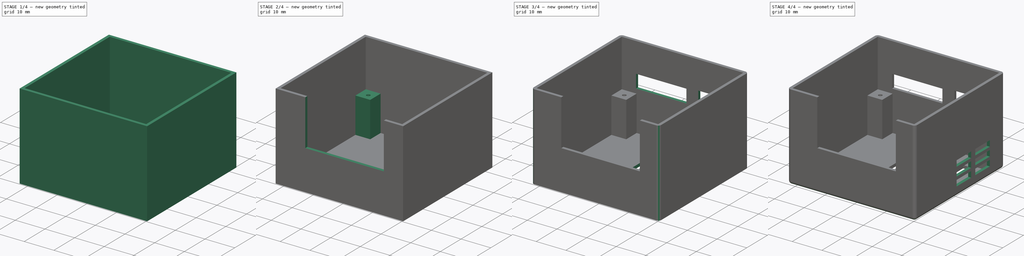
[diagram: build sequence overview — one tinted view per stage of 4, left to right]
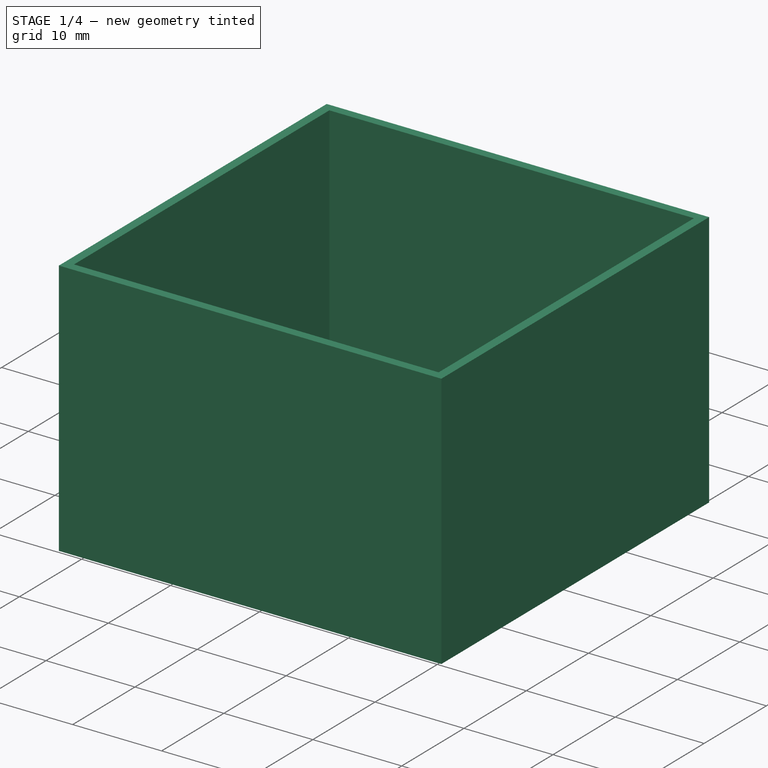
[diagram: stage 1 of 4 — iso view after this stage's code; geometry added in this stage tinted green]
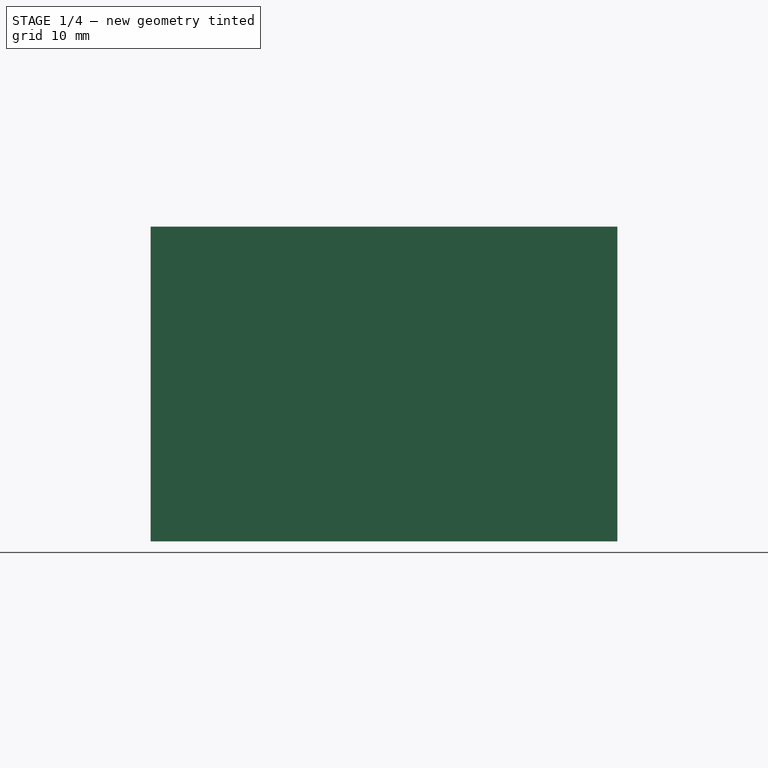
[diagram: stage 1 of 4 — front view after this stage's code; geometry added in this stage tinted green]
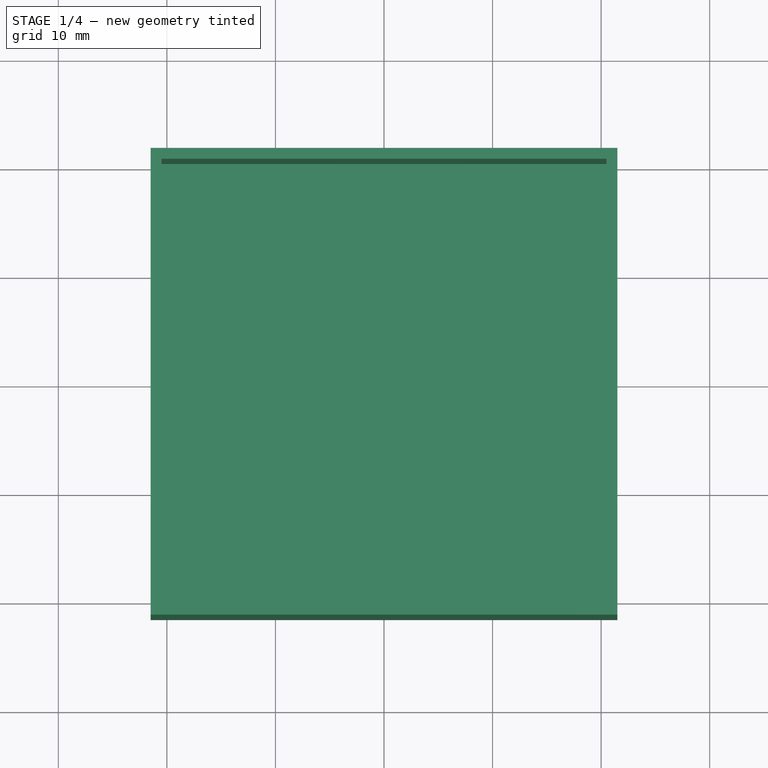
[diagram: stage 1 of 4 — top view after this stage's code; geometry added in this stage tinted green]
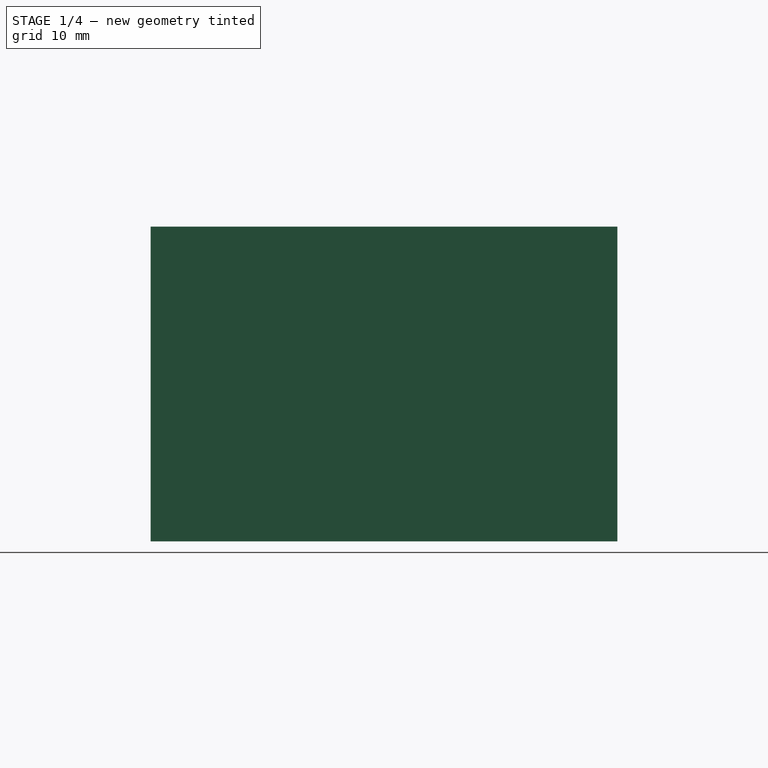
[diagram: stage 1 of 4 — right view after this stage's code; geometry added in this stage tinted green]
FCSTD DOCUMENT  (FreeCAD 0.18R16117 (Git))
Label: NanoPi Neo Case
License: All rights reserved
LicenseURL: http://en.wikipedia.org/wiki/All_rights_reserved
objects: Sketcher::SketchObject×8, PartDesign::Pocket×6, PartDesign::Pad×2, PartDesign::Fillet×2, PartDesign::Plane×1, PartDesign::Body×1
note: 28 computed .brp shape members not serialized (recipe doc carries the construction recipe); baked Part::Feature solids carry a one-line shape summary decoded from their .brp

FEATURE [Sketcher::SketchObject] Sketch
  MapMode = 5
  Support = -> [XY_Plane]
  sketch-geometry (4):
    g0: LineSegment StartX=-21.5 StartY=21.5 StartZ=0 EndX=21.5 EndY=21.5 EndZ=0
    g1: LineSegment StartX=21.5 StartY=21.5 StartZ=0 EndX=21.5 EndY=-21.5 EndZ=0
    g2: LineSegment StartX=21.5 StartY=-21.5 StartZ=0 EndX=-21.5 EndY=-21.5 EndZ=0
    g3: LineSegment StartX=-21.5 StartY=-21.5 StartZ=0 EndX=-21.5 EndY=21.5 EndZ=0
  constraints (12):
    c: Coincident(g0,g1)
    c: Coincident(g1,g2)
    c: Coincident(g2,g3)
    c: Coincident(g3,g0)
    c: Horizontal(g0)
    c: Horizontal(g2)
    c: Vertical(g1)
    c: Vertical(g3)
    c: Distance(g0) = 43
    c: Distance(g3) = 43
    c: DistanceX(g0) = -21.5
    c: DistanceY(g0) = 21.5
FEATURE [PartDesign::Pad] Pad
  Length = 29
  Length2 = 100
  Profile = -> Sketch
  Type = 0
FEATURE [Sketcher::SketchObject] Sketch001
  ExternalGeometry = -> [Pad]
  MapMode = 5
  Placement = pos=(0,0,29) rot=(0,0,1;0rad)
  Support = -> [Pad]
  sketch-geometry (4):
    g0: LineSegment StartX=-20.5 StartY=20.5 StartZ=0 EndX=20.5 EndY=20.5 EndZ=0
    g1: LineSegment StartX=20.5 StartY=20.5 StartZ=0 EndX=20.5 EndY=-20.5 EndZ=0
    g2: LineSegment StartX=20.5 StartY=-20.5 StartZ=0 EndX=-20.5 EndY=-20.5 EndZ=0
    g3: LineSegment StartX=-20.5 StartY=-20.5 StartZ=0 EndX=-20.5 EndY=20.5 EndZ=0
  constraints (12):
    c: Coincident(g0,g1)
    c: Coincident(g1,g2)
    c: Coincident(g2,g3)
    c: Coincident(g3,g0)
    c: Horizontal(g0)
    c: Horizontal(g2)
    c: Vertical(g1)
    c: Vertical(g3)
    c: DistanceX(g-5,g0) = 1
    c: DistanceX(g0,g-5) = 1
    c: DistanceY(g-6,g2) = 1
    c: DistanceY(g0,g-5) = 1
FEATURE [PartDesign::Pocket] Pocket
  BaseFeature = -> Pad
  Length = 28
  Length2 = 100
  Profile = -> Sketch001
  Type = 0
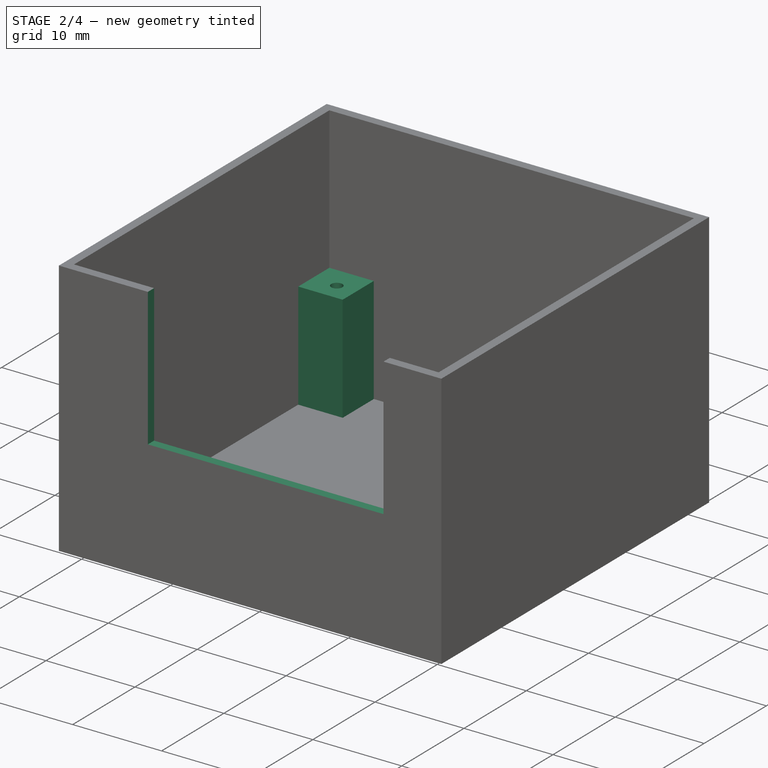
[diagram: stage 2 of 4 — iso view after this stage's code; geometry added in this stage tinted green]
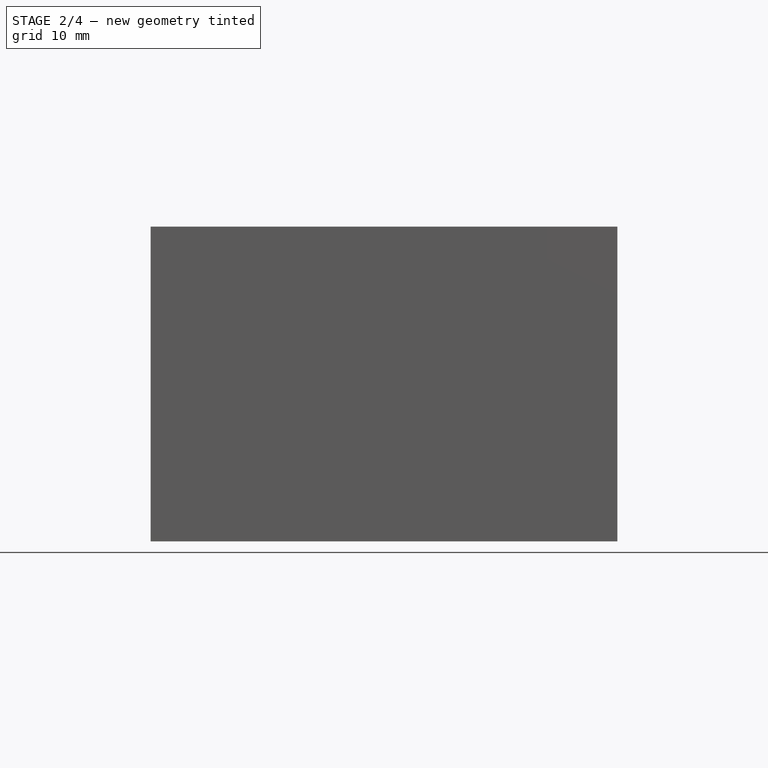
[diagram: stage 2 of 4 — front view after this stage's code; geometry added in this stage tinted green]
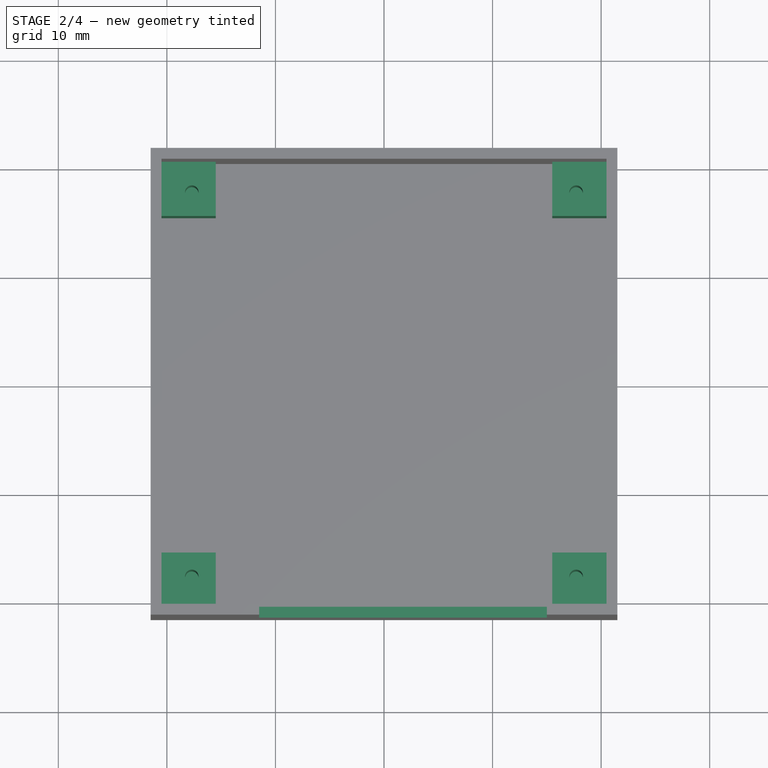
[diagram: stage 2 of 4 — top view after this stage's code; geometry added in this stage tinted green]
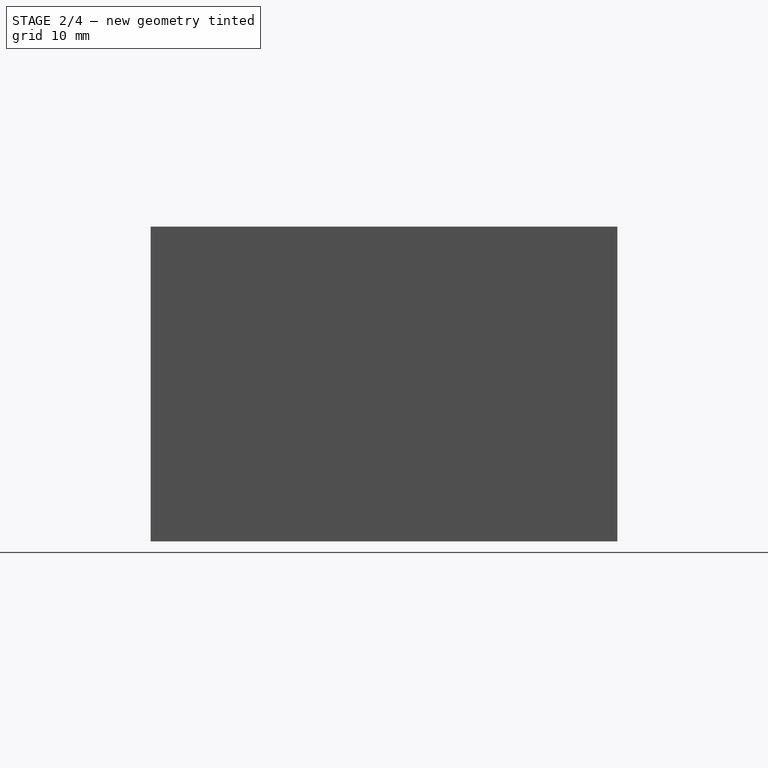
[diagram: stage 2 of 4 — right view after this stage's code; geometry added in this stage tinted green]
FEATURE [Sketcher::SketchObject] Sketch002
  ExternalGeometry = -> [Pocket]
  MapMode = 5
  Placement = pos=(0,0,1) rot=(0,0,1;0rad)
  Support = -> [Pocket]
  sketch-geometry (16):
    g0: LineSegment StartX=-20.5 StartY=20.5 StartZ=0 EndX=-15.5 EndY=20.5 EndZ=0
    g1: LineSegment StartX=-15.5 StartY=20.5 StartZ=0 EndX=-15.5 EndY=15.5 EndZ=0
    g2: LineSegment StartX=-15.5 StartY=15.5 StartZ=0 EndX=-20.5 EndY=15.5 EndZ=0
    g3: LineSegment StartX=-20.5 StartY=15.5 StartZ=0 EndX=-20.5 EndY=20.5 EndZ=0
    g4: LineSegment StartX=15.5 StartY=20.5 StartZ=0 EndX=20.5 EndY=20.5 EndZ=0
    g5: LineSegment StartX=20.5 StartY=20.5 StartZ=0 EndX=20.5 EndY=15.5 EndZ=0
    g6: LineSegment StartX=20.5 StartY=15.5 StartZ=0 EndX=15.5 EndY=15.5 EndZ=0
    g7: LineSegment StartX=15.5 StartY=15.5 StartZ=0 EndX=15.5 EndY=20.5 EndZ=0
    g8: LineSegment StartX=-20.5 StartY=-15.5 StartZ=0 EndX=-15.5 EndY=-15.5 EndZ=0
    g9: LineSegment StartX=-15.5 StartY=-15.5 StartZ=0 EndX=-15.5 EndY=-20.5 EndZ=0
    g10: LineSegment StartX=-15.5 StartY=-20.5 StartZ=0 EndX=-20.5 EndY=-20.5 EndZ=0
    g11: LineSegment StartX=-20.5 StartY=-20.5 StartZ=0 EndX=-20.5 EndY=-15.5 EndZ=0
    g12: LineSegment StartX=15.5 StartY=-15.5 StartZ=0 EndX=20.5 EndY=-15.5 EndZ=0
    g13: LineSegment StartX=20.5 StartY=-15.5 StartZ=0 EndX=20.5 EndY=-20.5 EndZ=0
    g14: LineSegment StartX=20.5 StartY=-20.5 StartZ=0 EndX=15.5 EndY=-20.5 EndZ=0
    g15: LineSegment StartX=15.5 StartY=-20.5 StartZ=0 EndX=15.5 EndY=-15.5 EndZ=0
  constraints (44):
    c: Coincident(g0,g1)
    c: Coincident(g1,g2)
    c: Coincident(g2,g3)
    c: Coincident(g3,g0)
    c: Horizontal(g0)
    c: Horizontal(g2)
    c: Vertical(g1)
    c: Vertical(g3)
    c: Coincident(g0,g-4)
    c: Distance(g2) = 5
    c: Distance(g1) = 5
    c: Coincident(g4,g5)
    c: Coincident(g5,g6)
    c: Coincident(g6,g7)
    c: Coincident(g7,g4)
    c: Horizontal(g4)
    c: Horizontal(g6)
    c: Vertical(g5)
    c: Vertical(g7)
    c: Coincident(g4,g-4)
    c: Distance(g7) = 5
    c: Distance(g6) = 5
    c: Coincident(g8,g9)
    c: Coincident(g9,g10)
    c: Coincident(g10,g11)
    c: Coincident(g11,g8)
    c: Horizontal(g8)
    c: Horizontal(g10)
    c: Vertical(g9)
    c: Vertical(g11)
    c: Coincident(g10,g-3)
    c: Distance(g8) = 5
    c: Distance(g9) = 5
    c: Coincident(g12,g13)
    c: Coincident(g13,g14)
    c: Coincident(g14,g15)
    c: Coincident(g15,g12)
    c: Horizontal(g12)
    c: Horizontal(g14)
    c: Vertical(g13)
    c: Vertical(g15)
    c: Coincident(g13,g-5)
    c: Distance(g15) = 5
    c: Distance(g12) = 5
FEATURE [PartDesign::Pad] Pad001
  BaseFeature = -> Pocket
  Length = 12
  Length2 = 100
  Profile = -> Sketch002
  Type = 0
FEATURE [PartDesign::Plane] DatumPlane
  Length = 51.6
  MapMode = 5
  Placement = pos=(0,0,13) rot=(0,0,1;0rad)
  ResizeMode = 0
  Support = -> [Pad001]
  Width = 51.6
FEATURE [Sketcher::SketchObject] Sketch003
  MapMode = 5
  Placement = pos=(0,0,13) rot=(0,0,1;0rad)
  Support = -> [DatumPlane]
  sketch-geometry (4):
    g0: Circle CenterX=-17.7 CenterY=17.7 CenterZ=0 NormalX=0 NormalY=0 NormalZ=1 AngleXU=0 Radius=0.625
    g1: Circle CenterX=17.7 CenterY=17.7 CenterZ=0 NormalX=0 NormalY=0 NormalZ=1 AngleXU=0 Radius=0.625
    g2: Circle CenterX=-17.7 CenterY=-17.7 CenterZ=0 NormalX=0 NormalY=0 NormalZ=1 AngleXU=0 Radius=0.625
    g3: Circle CenterX=17.7 CenterY=-17.7 CenterZ=0 NormalX=0 NormalY=0 NormalZ=1 AngleXU=0 Radius=0.625
  constraints (12):
    c: Diameter(g0) = 1.25
    c: Diameter(g1) = 1.25
    c: Diameter(g2) = 1.25
    c: Diameter(g3) = 1.25
    c: DistanceX(g0) = -17.7
    c: DistanceY(g0) = 17.7
    c: DistanceX(g1) = 17.7
    c: DistanceY(g1) = 17.7
    c: DistanceX(g2) = -17.7
    c: DistanceY(g2) = -17.7
    c: DistanceX(g3) = 17.7
    c: DistanceY(g3) = -17.7
FEATURE [PartDesign::Pocket] Pocket001
  BaseFeature = -> Pad001
  Length = 10
  Length2 = 100
  Profile = -> Sketch003
  Type = 0
FEATURE [Sketcher::SketchObject] Sketch004
  ExternalGeometry = -> [DatumPlane,Pocket001]
  MapMode = 5
  Placement = pos=(0,-21.5,0) rot=(1,0,0;1.5708rad)
  Support = -> [Pocket001]
  sketch-geometry (4):
    g0: LineSegment StartX=-11.5 StartY=29.5 StartZ=0 EndX=15 EndY=29.5 EndZ=0
    g1: LineSegment StartX=15 StartY=29.5 StartZ=0 EndX=15 EndY=13.5 EndZ=0
    g2: LineSegment StartX=15 StartY=13.5 StartZ=0 EndX=-11.5 EndY=13.5 EndZ=0
    g3: LineSegment StartX=-11.5 StartY=13.5 StartZ=0 EndX=-11.5 EndY=29.5 EndZ=0
  constraints (12):
    c: Coincident(g0,g1)
    c: Coincident(g1,g2)
    c: Coincident(g2,g3)
    c: Coincident(g3,g0)
    c: Horizontal(g0)
    c: Horizontal(g2)
    c: Vertical(g1)
    c: Vertical(g3)
    c: Distance(g0) = 26.5
    c: Distance(g3) = 16
    c: DistanceY(g-4,g1) = 0.5
    c: DistanceX(g-5,g2) = 10
FEATURE [PartDesign::Pocket] Pocket002
  BaseFeature = -> Pocket001
  Length = 1
  Length2 = 100
  Profile = -> Sketch004
  Type = 0
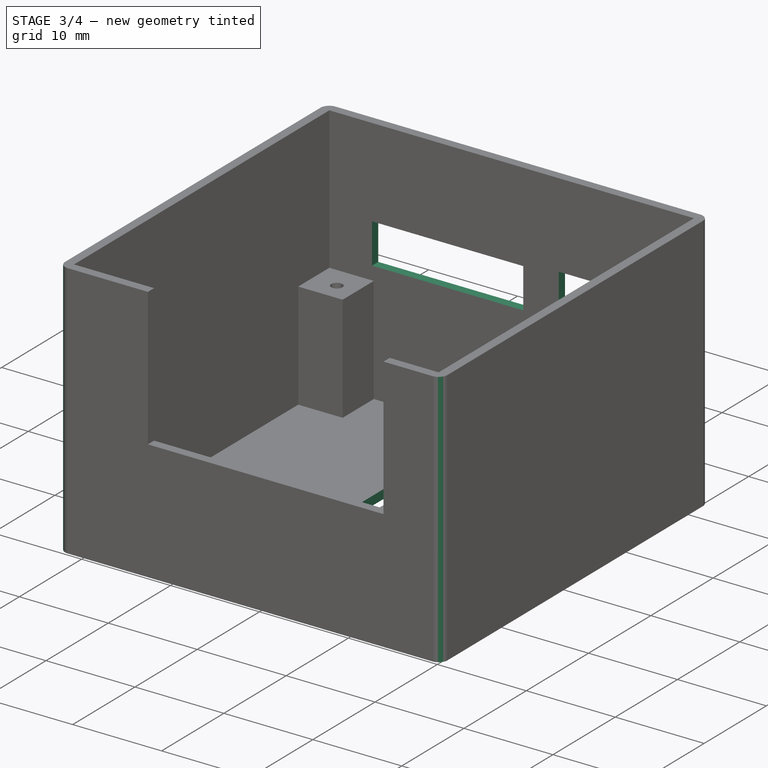
[diagram: stage 3 of 4 — iso view after this stage's code; geometry added in this stage tinted green]
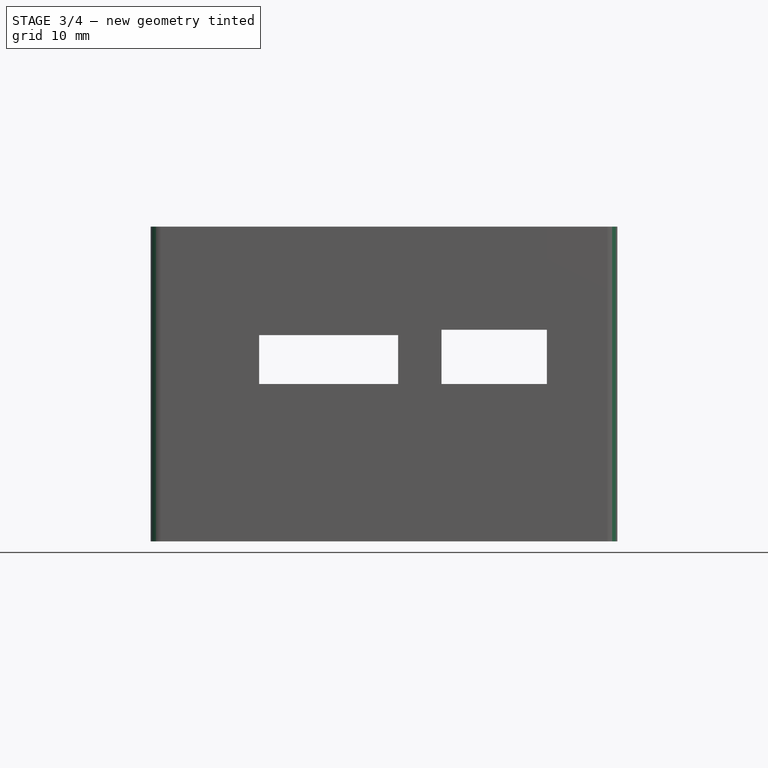
[diagram: stage 3 of 4 — front view after this stage's code; geometry added in this stage tinted green]
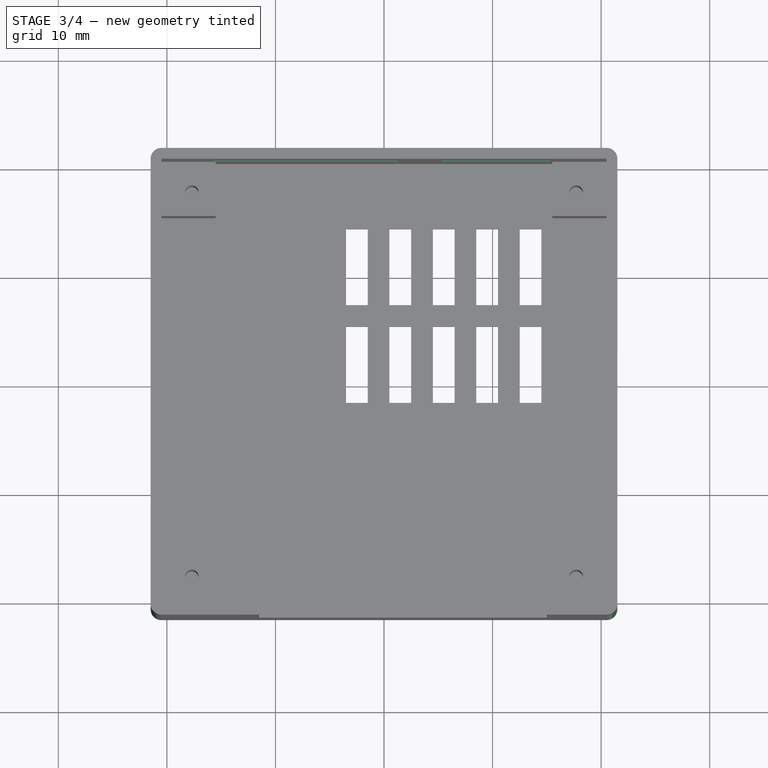
[diagram: stage 3 of 4 — top view after this stage's code; geometry added in this stage tinted green]
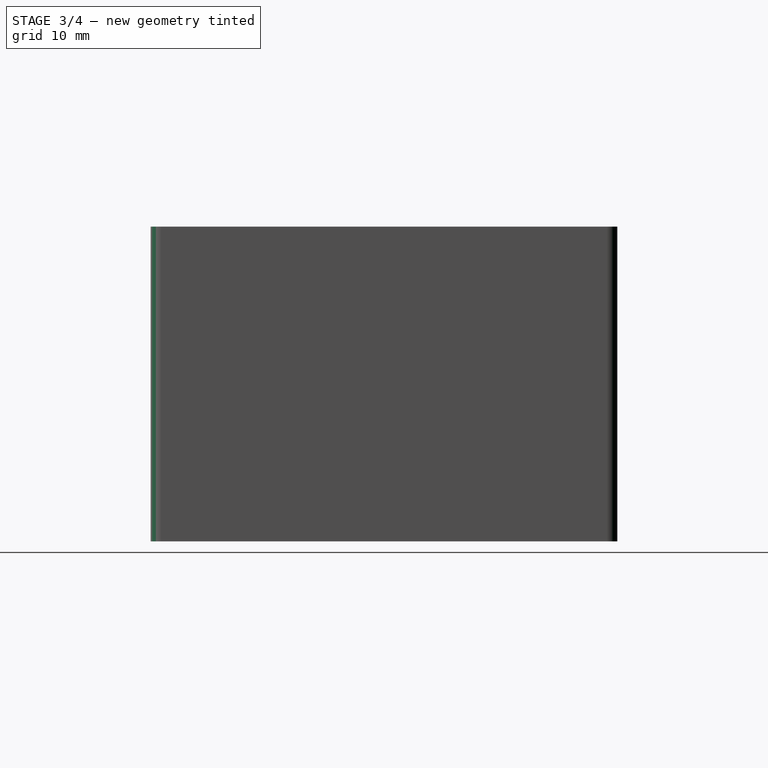
[diagram: stage 3 of 4 — right view after this stage's code; geometry added in this stage tinted green]
FEATURE [Sketcher::SketchObject] Sketch005
  ExternalGeometry = -> [Pocket002]
  MapMode = 5
  Placement = pos=(0,21.5,0) rot=(0,0.707107,0.707107;3.14159rad)
  Support = -> [Pocket002]
  sketch-geometry (8):
    g0: LineSegment StartX=-15.3 StartY=19.5 StartZ=0 EndX=-5.3 EndY=19.5 EndZ=0
    g1: LineSegment StartX=-5.3 StartY=19.5 StartZ=0 EndX=-5.3 EndY=14.5 EndZ=0
    g2: LineSegment StartX=-5.3 StartY=14.5 StartZ=0 EndX=-15.3 EndY=14.5 EndZ=0
    g3: LineSegment StartX=-15.3 StartY=14.5 StartZ=0 EndX=-15.3 EndY=19.5 EndZ=0
    g4: LineSegment StartX=-1.3 StartY=19 StartZ=0 EndX=15.7 EndY=19 EndZ=0
    g5: LineSegment StartX=15.7 StartY=19 StartZ=0 EndX=15.7 EndY=14.5 EndZ=0
    g6: LineSegment StartX=15.7 StartY=14.5 StartZ=0 EndX=-1.3 EndY=14.5 EndZ=0
    g7: LineSegment StartX=-1.3 StartY=14.5 StartZ=0 EndX=-1.3 EndY=19 EndZ=0
FEATURE [PartDesign::Pocket] Pocket003
  BaseFeature = -> Pocket002
  Length = 1
  Length2 = 100
  Profile = -> Sketch005
  Type = 0
FEATURE [Sketcher::SketchObject] Sketch006
  ExternalGeometry = -> [Pocket003]
  MapMode = 5
  Placement = pos=(0,0,0) rot=(1,0,0;3.14159rad)
  Support = -> [Pocket003]
  sketch-geometry (40):
    g0: LineSegment StartX=12.5 StartY=-7.5 StartZ=0 EndX=14.5 EndY=-7.5 EndZ=0
    g1: LineSegment StartX=14.5 StartY=-7.5 StartZ=0 EndX=14.5 EndY=-14.5 EndZ=0
    g2: LineSegment StartX=14.5 StartY=-14.5 StartZ=0 EndX=12.5 EndY=-14.5 EndZ=0
    g3: LineSegment StartX=12.5 StartY=-14.5 StartZ=0 EndX=12.5 EndY=-7.5 EndZ=0
    g4: LineSegment StartX=12.5 StartY=1.5 StartZ=0 EndX=14.5 EndY=1.5 EndZ=0
    g5: LineSegment StartX=14.5 StartY=1.5 StartZ=0 EndX=14.5 EndY=-5.5 EndZ=0
    g6: LineSegment StartX=14.5 StartY=-5.5 StartZ=0 EndX=12.5 EndY=-5.5 EndZ=0
    g7: LineSegment StartX=12.5 StartY=-5.5 StartZ=0 EndX=12.5 EndY=1.5 EndZ=0
    g8: LineSegment StartX=8.5 StartY=-7.5 StartZ=0 EndX=10.5 EndY=-7.5 EndZ=0
    g9: LineSegment StartX=10.5 StartY=-7.5 StartZ=0 EndX=10.5 EndY=-14.5 EndZ=0
    g10: LineSegment StartX=10.5 StartY=-14.5 StartZ=0 EndX=8.5 EndY=-14.5 EndZ=0
    g11: LineSegment StartX=8.5 StartY=-14.5 StartZ=0 EndX=8.5 EndY=-7.5 EndZ=0
    g12: LineSegment StartX=8.5 StartY=1.5 StartZ=0 EndX=10.5 EndY=1.5 EndZ=0
    g13: LineSegment StartX=10.5 StartY=1.5 StartZ=0 EndX=10.5 EndY=-5.5 EndZ=0
    g14: LineSegment StartX=10.5 StartY=-5.5 StartZ=0 EndX=8.5 EndY=-5.5 EndZ=0
    g15: LineSegment StartX=8.5 StartY=-5.5 StartZ=0 EndX=8.5 EndY=1.5 EndZ=0
    g16: LineSegment StartX=4.5 StartY=1.5 StartZ=0 EndX=6.5 EndY=1.5 EndZ=0
    g17: LineSegment StartX=6.5 StartY=1.5 StartZ=0 EndX=6.5 EndY=-5.5 EndZ=0
    g18: LineSegment StartX=6.5 StartY=-5.5 StartZ=0 EndX=4.5 EndY=-5.5 EndZ=0
    g19: LineSegment StartX=4.5 StartY=-5.5 StartZ=0 EndX=4.5 EndY=1.5 EndZ=0
    g20: LineSegment StartX=4.5 StartY=-7.5 StartZ=0 EndX=6.5 EndY=-7.5 EndZ=0
    g21: LineSegment StartX=6.5 StartY=-7.5 StartZ=0 EndX=6.5 EndY=-14.5 EndZ=0
    g22: LineSegment StartX=6.5 StartY=-14.5 StartZ=0 EndX=4.5 EndY=-14.5 EndZ=0
    g23: LineSegment StartX=4.5 StartY=-14.5 StartZ=0 EndX=4.5 EndY=-7.5 EndZ=0
    g24: LineSegment StartX=0.5 StartY=1.5 StartZ=0 EndX=2.5 EndY=1.5 EndZ=0
    g25: LineSegment StartX=2.5 StartY=1.5 StartZ=0 EndX=2.5 EndY=-5.5 EndZ=0
    g26: LineSegment StartX=2.5 StartY=-5.5 StartZ=0 EndX=0.5 EndY=-5.5 EndZ=0
    g27: LineSegment StartX=0.5 StartY=-5.5 StartZ=0 EndX=0.5 EndY=1.5 EndZ=0
    g28: LineSegment StartX=0.5 StartY=-7.5 StartZ=0 EndX=2.5 EndY=-7.5 EndZ=0
    g29: LineSegment StartX=2.5 StartY=-7.5 StartZ=0 EndX=2.5 EndY=-14.5 EndZ=0
    g30: LineSegment StartX=2.5 StartY=-14.5 StartZ=0 EndX=0.5 EndY=-14.5 EndZ=0
    g31: LineSegment StartX=0.5 StartY=-14.5 StartZ=0 EndX=0.5 EndY=-7.5 EndZ=0
    g32: LineSegment StartX=-3.5 StartY=1.5 StartZ=0 EndX=-1.5 EndY=1.5 EndZ=0
    g33: LineSegment StartX=-1.5 StartY=1.5 StartZ=0 EndX=-1.5 EndY=-5.5 EndZ=0
    g34: LineSegment StartX=-1.5 StartY=-5.5 StartZ=0 EndX=-3.5 EndY=-5.5 EndZ=0
    g35: LineSegment StartX=-3.5 StartY=-5.5 StartZ=0 EndX=-3.5 EndY=1.5 EndZ=0
    g36: LineSegment StartX=-3.5 StartY=-7.5 StartZ=0 EndX=-1.5 EndY=-7.5 EndZ=0
    g37: LineSegment StartX=-1.5 StartY=-7.5 StartZ=0 EndX=-1.5 EndY=-14.5 EndZ=0
    g38: LineSegment StartX=-1.5 StartY=-14.5 StartZ=0 EndX=-3.5 EndY=-14.5 EndZ=0
    g39: LineSegment StartX=-3.5 StartY=-14.5 StartZ=0 EndX=-3.5 EndY=-7.5 EndZ=0
  constraints (121):
    c: Coincident(g0,g1)
    c: Coincident(g1,g2)
    c: Coincident(g2,g3)
    c: Coincident(g3,g0)
    c: Horizontal(g0)
    c: Horizontal(g2)
    c: Vertical(g1)
    c: Vertical(g3)
    c: DistanceX(g1,g-3) = 7
    c: DistanceY(g-3,g1) = 7
    c: DistanceY(g1,g1) = 7
    c: DistanceX(g0,g0) = 2
    c: Coincident(g4,g5)
    c: Coincident(g5,g6)
    c: Coincident(g6,g7)
    c: Coincident(g7,g4)
    c: Horizontal(g4)
    c: Horizontal(g6)
    c: Vertical(g5)
    c: Vertical(g7)
    c: Equal(g6,g0)
    c: Equal(g3,g7)
    c: DistanceX(g5,g0) = 0
    c: DistanceY(g0,g5) = 2
    c: Coincident(g8,g9)
    c: Coincident(g9,g10)
    c: Coincident(g10,g11)
    c: Coincident(g11,g8)
    c: Horizontal(g8)
    c: Horizontal(g10)
    c: Vertical(g9)
    c: Vertical(g11)
    c: Equal(g8,g4)
    c: Equal(g11,g7)
    c: DistanceX(g9,g2) = 2
    c: DistanceY(g2,g10) = 0
    c: Coincident(g12,g13)
    c: Coincident(g13,g14)
    c: Coincident(g14,g15)
    c: Coincident(g15,g12)
    c: Horizontal(g12)
    c: Horizontal(g14)
    c: Vertical(g13)
    c: Vertical(g15)
    c: Equal(g15,g7)
    c: Equal(g12,g4)
    c: DistanceX(g14,g8) = 0
    c: DistanceY(g8,g14) = 2
    c: Coincident(g16,g17)
    c: Coincident(g17,g18)
    c: Coincident(g18,g19)
    c: Coincident(g19,g16)
    c: Horizontal(g16)
    c: Horizontal(g18)
    c: Vertical(g17)
    c: Vertical(g19)
    c: Coincident(g20,g21)
    c: Coincident(g21,g22)
    c: Coincident(g22,g23)
    c: Coincident(g23,g20)
    c: Horizontal(g20)
    c: Horizontal(g22)
    c: Vertical(g21)
    c: Vertical(g23)
    c: Coincident(g24,g25)
    c: Coincident(g25,g26)
    c: Coincident(g26,g27)
    c: Coincident(g27,g24)
    c: Horizontal(g24)
    c: Horizontal(g26)
    c: Vertical(g25)
    c: Vertical(g27)
    c: Coincident(g28,g29)
    c: Coincident(g29,g30)
    c: Coincident(g30,g31)
    c: Coincident(g31,g28)
    c: Horizontal(g28)
    c: Horizontal(g30)
    c: Vertical(g29)
    c: Vertical(g31)
    c: Coincident(g32,g33)
    c: Coincident(g33,g34)
    c: Coincident(g34,g35)
    c: Coincident(g35,g32)
    c: Horizontal(g32)
    c: Horizontal(g34)
    c: Vertical(g33)
    c: Vertical(g35)
    c: Coincident(g36,g37)
    c: Coincident(g37,g38)
    c: Coincident(g38,g39)
    c: Coincident(g39,g36)
    c: Horizontal(g36)
    c: Horizontal(g38)
    c: Vertical(g37)
    c: Vertical(g39)
    c: Equal(g16,g4)
    c: Equal(g19,g7)
    c: Equal(g24,g4)
    c: Equal(g27,g7)
    c: Equal(g32,g4)
    c: Equal(g35,g7)
    c: Equal(g36,g0)
    c: Equal(g39,g3)
    c: Equal(g28,g0)
    c: Equal(g31,g3)
    c: Equal(g0,g0)
    c: Equal(g23,g3)
    c: Equal(g20,g0)
    c: DistanceY(g14,g17) = 0
    c: DistanceY(g17,g25) = 0
    c: DistanceY(g25,g33) = 0
    c: DistanceY(g21,g10) = 0
    c: DistanceY(g29,g21) = 0
    c: DistanceY(g37,g30) = 0
    c: DistanceX(g16,g12) = 2
    c: DistanceX(g24,g16) = 2
    c: DistanceX(g32,g24) = 2
    c: DistanceX(g20,g8) = 2
    c: DistanceX(g28,g20) = 2
    c: DistanceX(g36,g28) = 2
FEATURE [PartDesign::Pocket] Pocket004
  BaseFeature = -> Pocket003
  Length = 1
  Length2 = 100
  Profile = -> Sketch006
  Type = 0
FEATURE [PartDesign::Fillet] Fillet
  Base = -> Pocket004 [Edge13,Edge68,Edge4,Edge1]
  BaseFeature = -> Pocket004
  Radius = 1
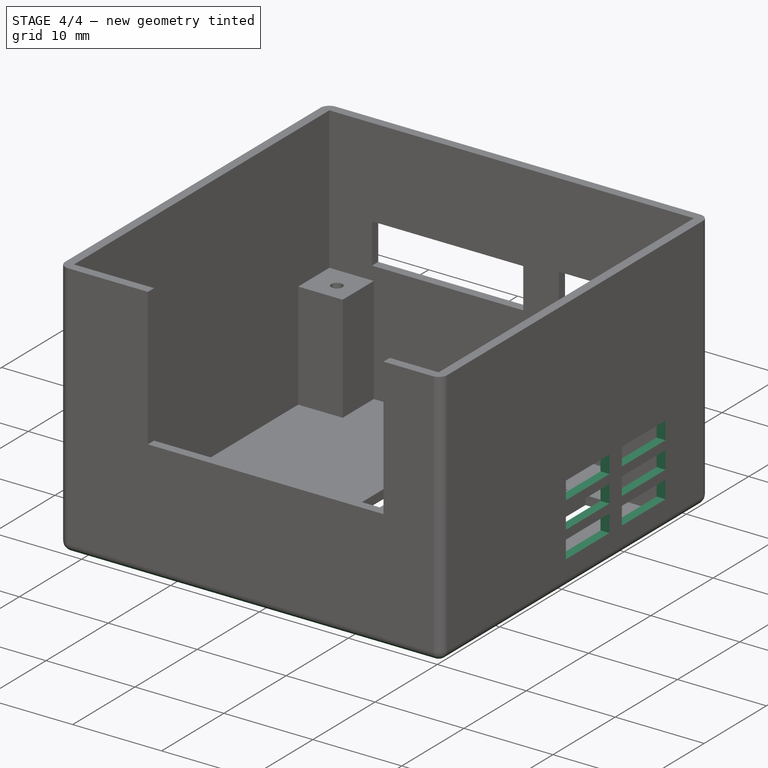
[diagram: stage 4 of 4 — iso view after this stage's code; geometry added in this stage tinted green]
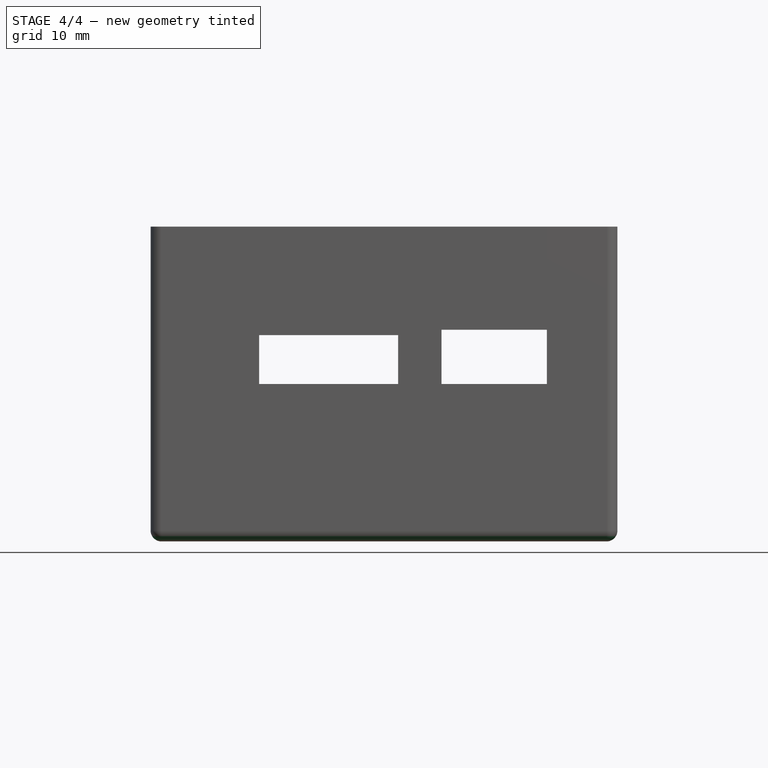
[diagram: stage 4 of 4 — front view after this stage's code; geometry added in this stage tinted green]
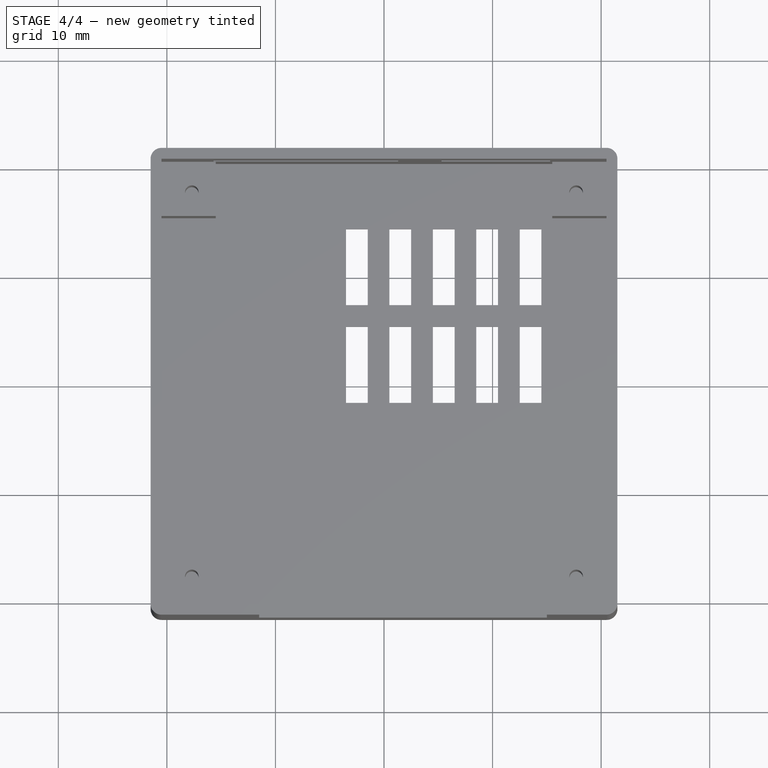
[diagram: stage 4 of 4 — top view after this stage's code; geometry added in this stage tinted green]
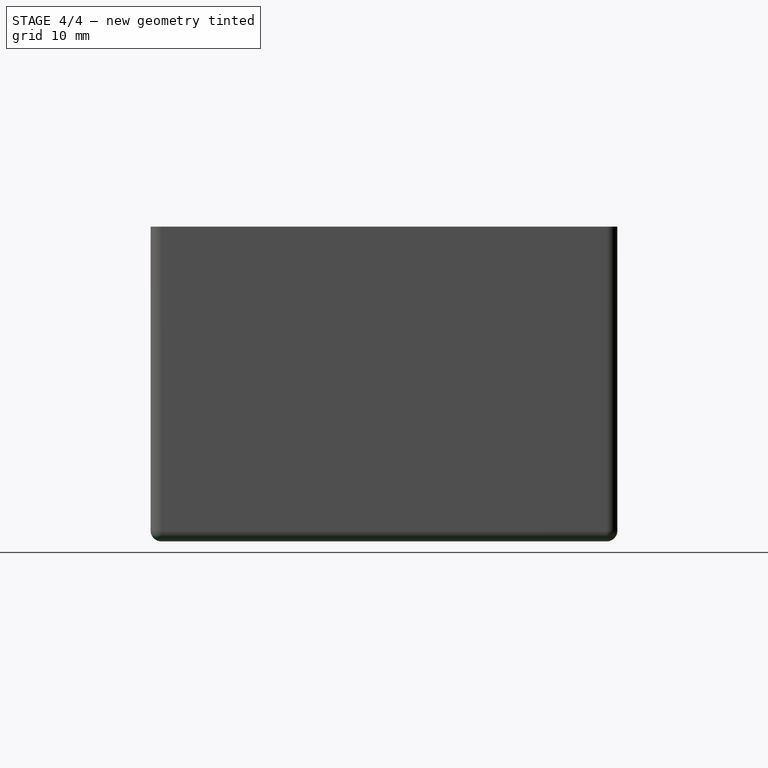
[diagram: stage 4 of 4 — right view after this stage's code; geometry added in this stage tinted green]
FEATURE [PartDesign::Fillet] Fillet001
  Base = -> Fillet [Edge16,Edge19,Edge1,Edge15]
  BaseFeature = -> Fillet
  Radius = 1
FEATURE [Sketcher::SketchObject] Sketch007
  ExternalGeometry = -> [Fillet001,DatumPlane]
  MapMode = 5
  Placement = pos=(21.5,0,0) rot=(0.57735,0.57735,0.57735;2.0944rad)
  Support = -> [Fillet001]
  sketch-geometry (24):
    g0: LineSegment StartX=-1.5 StartY=11 StartZ=0 EndX=5.5 EndY=11 EndZ=0
    g1: LineSegment StartX=5.5 StartY=11 StartZ=0 EndX=5.5 EndY=9 EndZ=0
    g2: LineSegment StartX=5.5 StartY=9 StartZ=0 EndX=-1.5 EndY=9 EndZ=0
    g3: LineSegment StartX=-1.5 StartY=9 StartZ=0 EndX=-1.5 EndY=11 EndZ=0
    g4: LineSegment StartX=7.5 StartY=11 StartZ=0 EndX=14.5 EndY=11 EndZ=0
    g5: LineSegment StartX=14.5 StartY=11 StartZ=0 EndX=14.5 EndY=9 EndZ=0
    g6: LineSegment StartX=14.5 StartY=9 StartZ=0 EndX=7.5 EndY=9 EndZ=0
    g7: LineSegment StartX=7.5 StartY=9 StartZ=0 EndX=7.5 EndY=11 EndZ=0
    g8: LineSegment StartX=-1.5 StartY=8 StartZ=0 EndX=5.5 EndY=8 EndZ=0
    g9: LineSegment StartX=5.5 StartY=8 StartZ=0 EndX=5.5 EndY=6 EndZ=0
    g10: LineSegment StartX=5.5 StartY=6 StartZ=0 EndX=-1.5 EndY=6 EndZ=0
    g11: LineSegment StartX=-1.5 StartY=6 StartZ=0 EndX=-1.5 EndY=8 EndZ=0
    g12: LineSegment StartX=7.5 StartY=8 StartZ=0 EndX=14.5 EndY=8 EndZ=0
    g13: LineSegment StartX=14.5 StartY=8 StartZ=0 EndX=14.5 EndY=6 EndZ=0
    g14: LineSegment StartX=14.5 StartY=6 StartZ=0 EndX=7.5 EndY=6 EndZ=0
    g15: LineSegment StartX=7.5 StartY=6 StartZ=0 EndX=7.5 EndY=8 EndZ=0
    g16: LineSegment StartX=-1.5 StartY=5 StartZ=0 EndX=5.5 EndY=5 EndZ=0
    g17: LineSegment StartX=5.5 StartY=5 StartZ=0 EndX=5.5 EndY=3 EndZ=0
    g18: LineSegment StartX=5.5 StartY=3 StartZ=0 EndX=-1.5 EndY=3 EndZ=0
    g19: LineSegment StartX=-1.5 StartY=3 StartZ=0 EndX=-1.5 EndY=5 EndZ=0
    g20: LineSegment StartX=7.5 StartY=5 StartZ=0 EndX=14.5 EndY=5 EndZ=0
    g21: LineSegment StartX=14.5 StartY=5 StartZ=0 EndX=14.5 EndY=3 EndZ=0
    g22: LineSegment StartX=14.5 StartY=3 StartZ=0 EndX=7.5 EndY=3 EndZ=0
    g23: LineSegment StartX=7.5 StartY=3 StartZ=0 EndX=7.5 EndY=5 EndZ=0
  constraints (73):
    c: Coincident(g0,g1)
    c: Coincident(g1,g2)
    c: Coincident(g2,g3)
    c: Coincident(g3,g0)
    c: Horizontal(g0)
    c: Horizontal(g2)
    c: Vertical(g1)
    c: Vertical(g3)
    c: Coincident(g4,g5)
    c: Coincident(g5,g6)
    c: Coincident(g6,g7)
    c: Coincident(g7,g4)
    c: Horizontal(g4)
    c: Horizontal(g6)
    c: Vertical(g5)
    c: Vertical(g7)
    c: Coincident(g8,g9)
    c: Coincident(g9,g10)
    c: Coincident(g10,g11)
    c: Coincident(g11,g8)
    c: Horizontal(g8)
    c: Horizontal(g10)
    c: Vertical(g9)
    c: Vertical(g11)
    c: Coincident(g12,g13)
    c: Coincident(g13,g14)
    c: Coincident(g14,g15)
    c: Coincident(g15,g12)
    c: Horizontal(g12)
    c: Horizontal(g14)
    c: Vertical(g13)
    c: Vertical(g15)
    c: Coincident(g16,g17)
    c: Coincident(g17,g18)
    c: Coincident(g18,g19)
    c: Coincident(g19,g16)
    c: Horizontal(g16)
    c: Horizontal(g18)
    c: Vertical(g17)
    c: Coincident(g20,g21)
    c: Coincident(g21,g22)
    c: Coincident(g22,g23)
    c: Coincident(g23,g20)
    c: Horizontal(g20)
    c: Horizontal(g22)
    c: Vertical(g21)
    c: Equal(g-4,g0)
    c: Equal(g8,g0)
    c: Equal(g16,g8)
    c: Equal(g-5,g20)
    c: Equal(g20,g12)
    c: Equal(g12,g4)
    c: DistanceY(g3,g3) = 2
    c: DistanceY(g11,g11) = 2
    c: DistanceY(g19,g19) = 2
    c: DistanceX(g16,g10) = 0
    c: DistanceX(g8,g2) = 0
    c: DistanceX(g18,g-4) = 0
    c: DistanceX(g-5,g22) = 0
    c: DistanceX(g20,g14) = 0
    c: DistanceX(g12,g6) = 0
    c: DistanceY(g22,g17) = 0
    c: DistanceY(g14,g9) = 0
    c: DistanceY(g6,g1) = 0
    c: Equal(g3,g7)
    c: Equal(g11,g15)
    c: Equal(g19,g23)
    c: DistanceY(g-6,g-6) = 0
    c: DistanceY(g4,g-7) = 2
    c: Equal(g16,g18)
    c: Equal(g20,g22)
    c: DistanceY(g8,g2) = 1
    c: DistanceY(g16,g10) = 1
FEATURE [PartDesign::Pocket] Pocket005
  BaseFeature = -> Fillet001
  Length = 1
  Length2 = 100
  Profile = -> Sketch007
  Type = 0
FEATURE [PartDesign::Body] Body
  Group = -> [Sketch,Pad,Sketch001,Pocket,Sketch002,Pad001,DatumPlane,Sketch003,Pocket001,Sketch004,Pocket002,Sketch005,Pocket003,Sketch006,Pocket004,Fillet,Fillet001,Sketch007,Pocket005]
  Origin = -> Origin
  Tip = -> Pocket005
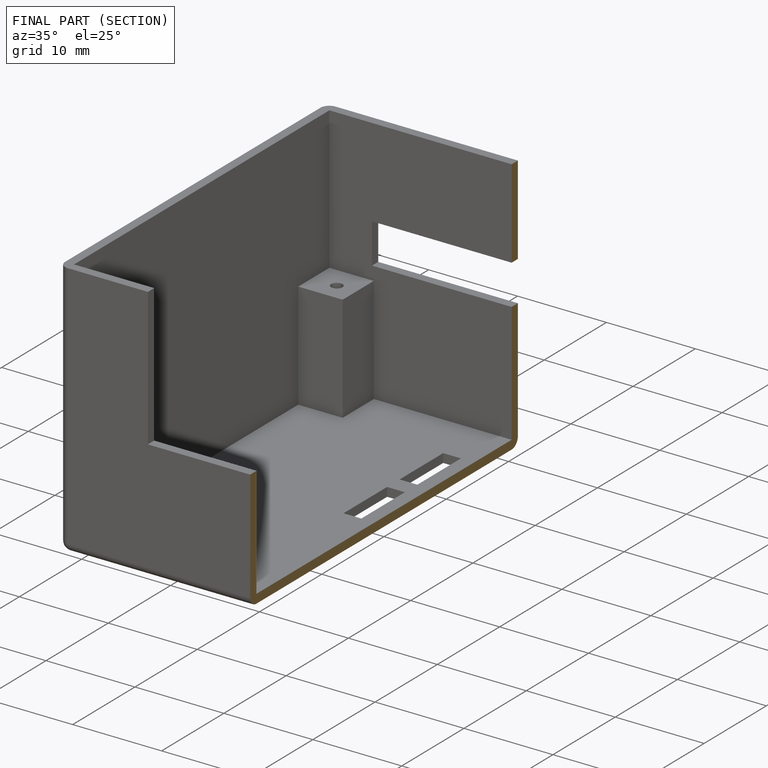
[diagram: finished part — half-section view (interior)]
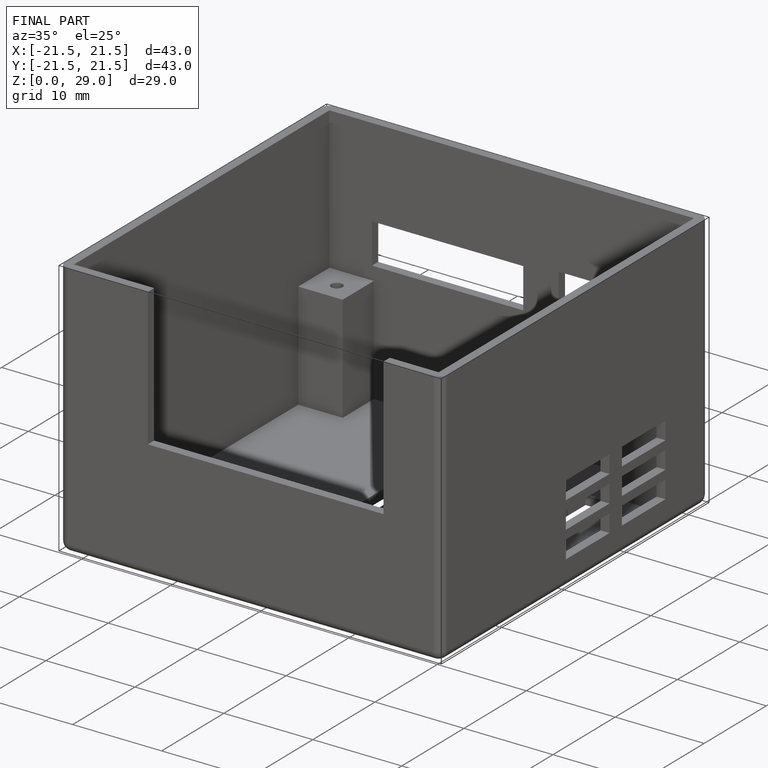
[diagram: finished part — iso view with bounding-box wireframe]
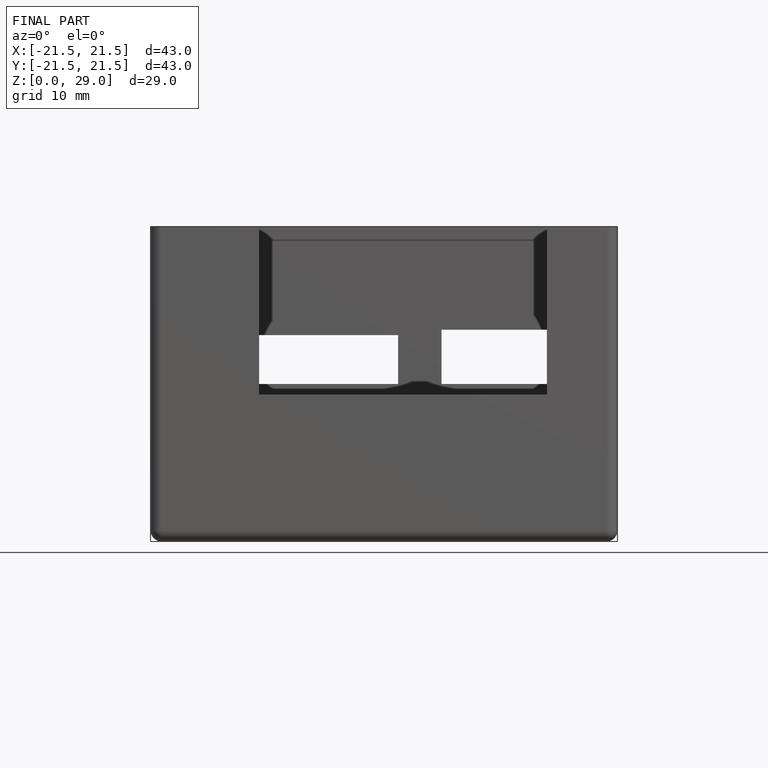
[diagram: finished part — front view with bounding-box wireframe]
